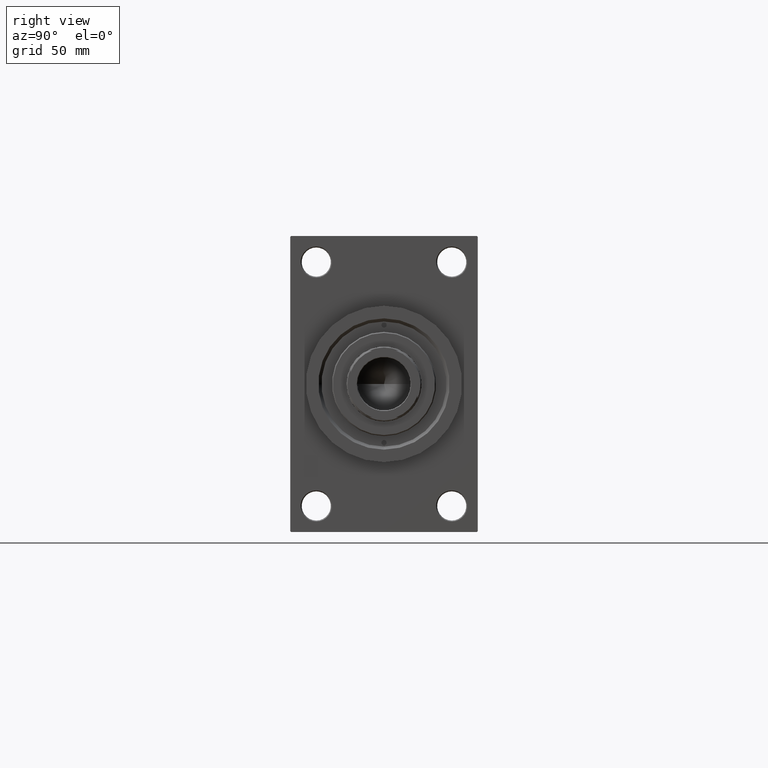
[diagram: clean part render]
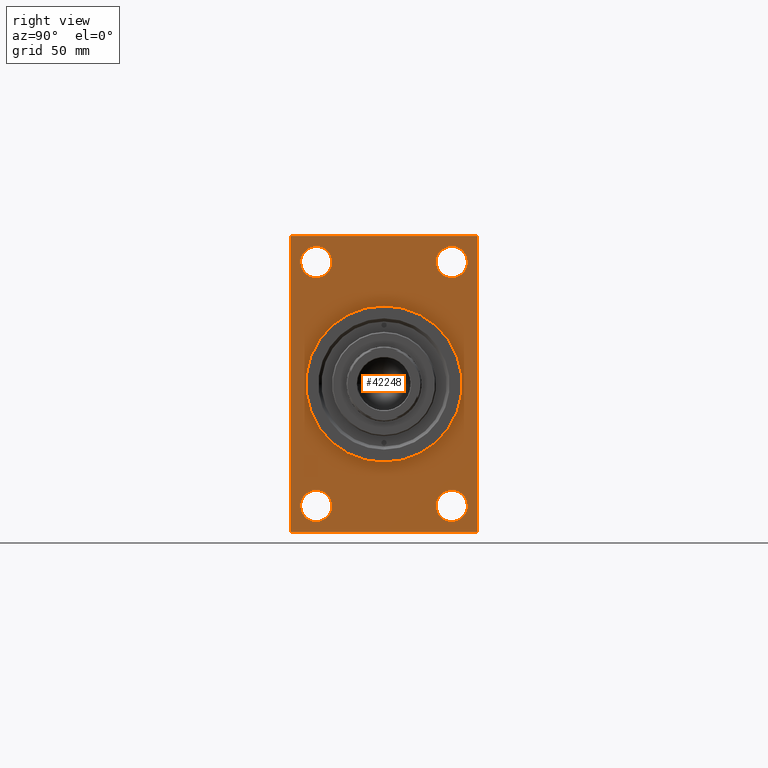
[diagram: same view with one face highlighted and labeled with its STEP entity id]
A machine part, right view. The second image highlights one B-rep face of the part: STEP entity #42248.
In plain terms, the highlighted planar face has unit normal (-1, 0, 0).
Its self-contained STEP definition (entity closure, byte-faithful):
#186 = EDGE_CURVE ( 'NONE', #45759, #33265, #299, .T. ) ;
#289 = EDGE_CURVE ( 'NONE', #39814, #9796, #32761, .T. ) ;
#299 = LINE ( 'NONE', #32429, #25840 ) ;
#440 = DIRECTION ( 'NONE',  ( 0.000000000000000000, 0.000000000000000000, 1.000000000000000000 ) ) ;
#588 = VECTOR ( 'NONE', #18477, 1000.000000000000114 ) ;
#698 = DIRECTION ( 'NONE',  ( -0.000000000000000000, -0.7071067811865622277, -0.7071067811865328068 ) ) ;
#754 = CARTESIAN_POINT ( 'NONE',  ( 245.0000000000000000, 32.50000000000000711, 58.50000000000000711 ) ) ;
#2003 = DIRECTION ( 'NONE',  ( 1.000000000000000000, 0.000000000000000000, 0.000000000000000000 ) ) ;
#2449 = VECTOR ( 'NONE', #45343, 1000.000000000000000 ) ;
#2517 = AXIS2_PLACEMENT_3D ( 'NONE', #31831, #13608, #24168 ) ;
#2533 = EDGE_CURVE ( 'NONE', #29727, #8025, #18938, .T. ) ;
#2587 = PLANE ( 'NONE',  #2517 ) ;
#3186 = LINE ( 'NONE', #18509, #36837 ) ;
#3559 = ORIENTED_EDGE ( 'NONE', *, *, #34337, .T. ) ;
#3860 = CARTESIAN_POINT ( 'NONE',  ( 245.0000000000000000, 45.00000000000001421, -70.50000000000001421 ) ) ;
#5236 = ORIENTED_EDGE ( 'NONE', *, *, #38192, .T. ) ;
#5444 = LINE ( 'NONE', #20053, #24578 ) ;
#6194 = FACE_BOUND ( 'NONE', #8870, .T. ) ;
#6227 = VERTEX_POINT ( 'NONE', #25962 ) ;
#6427 = FACE_BOUND ( 'NONE', #20432, .T. ) ;
#6935 = AXIS2_PLACEMENT_3D ( 'NONE', #44592, #11967, #30195 ) ;
#7033 = DIRECTION ( 'NONE',  ( 0.000000000000000000, 0.000000000000000000, -1.000000000000000000 ) ) ;
#7040 = AXIS2_PLACEMENT_3D ( 'NONE', #19752, #2003, #34376 ) ;
#7729 = CARTESIAN_POINT ( 'NONE',  ( 245.0000000000000000, -44.49999999999997158, -71.00000000000000000 ) ) ;
#8025 = VERTEX_POINT ( 'NONE', #29917 ) ;
#8063 = CARTESIAN_POINT ( 'NONE',  ( 245.0000000000000000, 0.000000000000000000, 0.000000000000000000 ) ) ;
#8472 = VECTOR ( 'NONE', #22501, 1000.000000000000000 ) ;
#8500 = CIRCLE ( 'NONE', #39144, 37.50000000000000711 ) ;
#8633 = EDGE_LOOP ( 'NONE', ( #34534, #23591, #43743, #24395, #15921, #16911, #42875, #3559 ) ) ;
#8870 = EDGE_LOOP ( 'NONE', ( #25010, #32334 ) ) ;
#9002 = CARTESIAN_POINT ( 'NONE',  ( 245.0000000000000000, 32.50000000000000711, 65.99999999999997158 ) ) ;
#9072 = VERTEX_POINT ( 'NONE', #42137 ) ;
#9380 = CARTESIAN_POINT ( 'NONE',  ( 245.0000000000000000, -44.99999999999997158, -70.50000000000000000 ) ) ;
#9558 = FACE_BOUND ( 'NONE', #20856, .T. ) ;
#9796 = VERTEX_POINT ( 'NONE', #13003 ) ;
#9889 = AXIS2_PLACEMENT_3D ( 'NONE', #15006, #44295, #11439 ) ;
#9951 = AXIS2_PLACEMENT_3D ( 'NONE', #754, #15359, #12495 ) ;
#10311 = ORIENTED_EDGE ( 'NONE', *, *, #12841, .F. ) ;
#10448 = DIRECTION ( 'NONE',  ( 0.000000000000000000, 0.000000000000000000, 1.000000000000000000 ) ) ;
#11283 = LINE ( 'NONE', #3860, #588 ) ;
#11439 = DIRECTION ( 'NONE',  ( 0.000000000000000000, 0.000000000000000000, 1.000000000000000000 ) ) ;
#11561 = EDGE_CURVE ( 'NONE', #6227, #36818, #8500, .T. ) ;
#11967 = DIRECTION ( 'NONE',  ( -1.000000000000000000, 0.000000000000000000, -0.000000000000000000 ) ) ;
#12361 = DIRECTION ( 'NONE',  ( -1.000000000000000000, 0.000000000000000000, -0.000000000000000000 ) ) ;
#12495 = DIRECTION ( 'NONE',  ( 0.000000000000000000, 0.000000000000000000, 1.000000000000000000 ) ) ;
#12712 = VERTEX_POINT ( 'NONE', #40863 ) ;
#12841 = EDGE_CURVE ( 'NONE', #36818, #6227, #45347, .T. ) ;
#12904 = FACE_BOUND ( 'NONE', #34470, .T. ) ;
#13003 = CARTESIAN_POINT ( 'NONE',  ( 245.0000000000000000, -32.50000000000000000, -65.99999999999995737 ) ) ;
#13608 = DIRECTION ( 'NONE',  ( -1.000000000000000000, 0.000000000000000000, -0.000000000000000000 ) ) ;
#13830 = EDGE_CURVE ( 'NONE', #29727, #31541, #3186, .T. ) ;
#14342 = VECTOR ( 'NONE', #33573, 1000.000000000000000 ) ;
#14371 = EDGE_CURVE ( 'NONE', #33265, #28219, #5444, .T. ) ;
#15006 = CARTESIAN_POINT ( 'NONE',  ( 245.0000000000000000, 32.50000000000000711, -58.50000000000000000 ) ) ;
#15128 = CARTESIAN_POINT ( 'NONE',  ( 245.0000000000000000, -32.50000000000000000, 65.99999999999997158 ) ) ;
#15359 = DIRECTION ( 'NONE',  ( -1.000000000000000000, 0.000000000000000000, -0.000000000000000000 ) ) ;
#15456 = VERTEX_POINT ( 'NONE', #25111 ) ;
#15921 = ORIENTED_EDGE ( 'NONE', *, *, #2533, .F. ) ;
#16547 = CARTESIAN_POINT ( 'NONE',  ( 245.0000000000000000, 45.00000000000001421, -70.99999999999998579 ) ) ;
#16911 = ORIENTED_EDGE ( 'NONE', *, *, #13830, .T. ) ;
#17200 = FACE_BOUND ( 'NONE', #36680, .T. ) ;
#17962 = LINE ( 'NONE', #40253, #8472 ) ;
#18477 = DIRECTION ( 'NONE',  ( -0.000000000000000000, 0.7071067811865376918, 0.7071067811865573427 ) ) ;
#18509 = CARTESIAN_POINT ( 'NONE',  ( 245.0000000000000000, 44.50000000000007105, 71.00000000000000000 ) ) ;
#18938 = LINE ( 'NONE', #45088, #14342 ) ;
#19231 = CARTESIAN_POINT ( 'NONE',  ( 245.0000000000000000, -32.50000000000000000, 58.50000000000000711 ) ) ;
#19752 = CARTESIAN_POINT ( 'NONE',  ( 245.0000000000000000, 0.000000000000000000, 0.000000000000000000 ) ) ;
#20053 = CARTESIAN_POINT ( 'NONE',  ( 245.0000000000000000, -44.50000000000000000, -71.00000000000000000 ) ) ;
#20432 = EDGE_LOOP ( 'NONE', ( #21332, #42069 ) ) ;
#20567 = CIRCLE ( 'NONE', #26684, 7.499999999999965361 ) ;
#20856 = EDGE_LOOP ( 'NONE', ( #10311, #22249 ) ) ;
#21332 = ORIENTED_EDGE ( 'NONE', *, *, #26650, .T. ) ;
#21536 = CIRCLE ( 'NONE', #35303, 7.499999999999965361 ) ;
#22249 = ORIENTED_EDGE ( 'NONE', *, *, #11561, .F. ) ;
#22501 = DIRECTION ( 'NONE',  ( 0.000000000000000000, -1.000000000000000000, -1.541976423090495387E-16 ) ) ;
#22823 = DIRECTION ( 'NONE',  ( 0.000000000000000000, 0.000000000000000000, 1.000000000000000000 ) ) ;
#23591 = ORIENTED_EDGE ( 'NONE', *, *, #14371, .T. ) ;
#23667 = CIRCLE ( 'NONE', #9889, 7.499999999999978684 ) ;
#23746 = LINE ( 'NONE', #16547, #2449 ) ;
#24168 = DIRECTION ( 'NONE',  ( -0.000000000000000000, 0.000000000000000000, 1.000000000000000000 ) ) ;
#24395 = ORIENTED_EDGE ( 'NONE', *, *, #26421, .T. ) ;
#24561 = CARTESIAN_POINT ( 'NONE',  ( 245.0000000000000000, 32.50000000000000711, 51.00000000000004263 ) ) ;
#24578 = VECTOR ( 'NONE', #34680, 1000.000000000000114 ) ;
#25010 = ORIENTED_EDGE ( 'NONE', *, *, #36771, .T. ) ;
#25111 = CARTESIAN_POINT ( 'NONE',  ( 245.0000000000000000, 32.50000000000000711, -51.00000000000001421 ) ) ;
#25573 = DIRECTION ( 'NONE',  ( 0.000000000000000000, 0.000000000000000000, -1.000000000000000000 ) ) ;
#25837 = DIRECTION ( 'NONE',  ( -1.000000000000000000, 0.000000000000000000, -0.000000000000000000 ) ) ;
#25840 = VECTOR ( 'NONE', #7033, 1000.000000000000000 ) ;
#25962 = CARTESIAN_POINT ( 'NONE',  ( 245.0000000000000000, 4.592425496802575156E-15, -37.50000000000000711 ) ) ;
#26085 = CARTESIAN_POINT ( 'NONE',  ( 245.0000000000000000, 32.50000000000000711, 58.50000000000000711 ) ) ;
#26343 = LINE ( 'NONE', #36912, #43705 ) ;
#26405 = CARTESIAN_POINT ( 'NONE',  ( 245.0000000000000000, 44.50000000000006395, -70.99999999999998579 ) ) ;
#26421 = EDGE_CURVE ( 'NONE', #35439, #8025, #11283, .T. ) ;
#26642 = AXIS2_PLACEMENT_3D ( 'NONE', #34091, #41282, #30976 ) ;
#26650 = EDGE_CURVE ( 'NONE', #9072, #35366, #44235, .T. ) ;
#26665 = DIRECTION ( 'NONE',  ( -1.000000000000000000, 0.000000000000000000, -0.000000000000000000 ) ) ;
#26681 = VERTEX_POINT ( 'NONE', #24561 ) ;
#26684 = AXIS2_PLACEMENT_3D ( 'NONE', #19231, #26665, #22823 ) ;
#28219 = VERTEX_POINT ( 'NONE', #7729 ) ;
#29727 = VERTEX_POINT ( 'NONE', #35455 ) ;
#29917 = CARTESIAN_POINT ( 'NONE',  ( 245.0000000000000000, 45.00000000000001421, -70.50000000000001421 ) ) ;
#30178 = VERTEX_POINT ( 'NONE', #9002 ) ;
#30195 = DIRECTION ( 'NONE',  ( 0.000000000000000000, 0.000000000000000000, 1.000000000000000000 ) ) ;
#30976 = DIRECTION ( 'NONE',  ( 0.000000000000000000, 0.000000000000000000, 1.000000000000000000 ) ) ;
#31541 = VERTEX_POINT ( 'NONE', #36254 ) ;
#31642 = EDGE_CURVE ( 'NONE', #26681, #30178, #41322, .T. ) ;
#31831 = CARTESIAN_POINT ( 'NONE',  ( 245.0000000000000000, 0.000000000000000000, 0.000000000000000000 ) ) ;
#32314 = CIRCLE ( 'NONE', #45346, 7.499999999999985789 ) ;
#32334 = ORIENTED_EDGE ( 'NONE', *, *, #289, .T. ) ;
#32429 = CARTESIAN_POINT ( 'NONE',  ( 245.0000000000000000, -44.99999999999997158, 70.99999999999998579 ) ) ;
#32761 = CIRCLE ( 'NONE', #26642, 7.499999999999985789 ) ;
#32816 = EDGE_CURVE ( 'NONE', #36250, #15456, #44454, .T. ) ;
#33265 = VERTEX_POINT ( 'NONE', #9380 ) ;
#33420 = EDGE_CURVE ( 'NONE', #31541, #12712, #17962, .T. ) ;
#33573 = DIRECTION ( 'NONE',  ( 0.000000000000000000, -4.886545002751570165E-17, -1.000000000000000000 ) ) ;
#34091 = CARTESIAN_POINT ( 'NONE',  ( 245.0000000000000000, -32.50000000000000000, -58.49999999999999289 ) ) ;
#34337 = EDGE_CURVE ( 'NONE', #12712, #45759, #26343, .T. ) ;
#34376 = DIRECTION ( 'NONE',  ( 0.000000000000000000, 0.000000000000000000, -1.000000000000000000 ) ) ;
#34407 = DIRECTION ( 'NONE',  ( 0.000000000000000000, 0.000000000000000000, 1.000000000000000000 ) ) ;
#34470 = EDGE_LOOP ( 'NONE', ( #44980, #5236 ) ) ;
#34534 = ORIENTED_EDGE ( 'NONE', *, *, #186, .T. ) ;
#34680 = DIRECTION ( 'NONE',  ( 0.000000000000000000, 0.7071067811865376918, -0.7071067811865573427 ) ) ;
#35303 = AXIS2_PLACEMENT_3D ( 'NONE', #26085, #25837, #440 ) ;
#35366 = VERTEX_POINT ( 'NONE', #15128 ) ;
#35432 = FACE_OUTER_BOUND ( 'NONE', #8633, .T. ) ;
#35439 = VERTEX_POINT ( 'NONE', #26405 ) ;
#35455 = CARTESIAN_POINT ( 'NONE',  ( 245.0000000000000000, 45.00000000000002132, 70.50000000000004263 ) ) ;
#36250 = VERTEX_POINT ( 'NONE', #43366 ) ;
#36254 = CARTESIAN_POINT ( 'NONE',  ( 245.0000000000000000, 44.50000000000007105, 71.00000000000000000 ) ) ;
#36680 = EDGE_LOOP ( 'NONE', ( #40219, #43905 ) ) ;
#36771 = EDGE_CURVE ( 'NONE', #9796, #39814, #32314, .T. ) ;
#36818 = VERTEX_POINT ( 'NONE', #41101 ) ;
#36837 = VECTOR ( 'NONE', #40315, 1000.000000000000114 ) ;
#36912 = CARTESIAN_POINT ( 'NONE',  ( 245.0000000000000000, -44.99999999999997158, 70.50000000000000000 ) ) ;
#37015 = CARTESIAN_POINT ( 'NONE',  ( 245.0000000000000000, -32.50000000000000000, -51.00000000000000711 ) ) ;
#38192 = EDGE_CURVE ( 'NONE', #30178, #26681, #21536, .T. ) ;
#39144 = AXIS2_PLACEMENT_3D ( 'NONE', #8063, #41140, #25573 ) ;
#39814 = VERTEX_POINT ( 'NONE', #37015 ) ;
#40219 = ORIENTED_EDGE ( 'NONE', *, *, #32816, .T. ) ;
#40253 = CARTESIAN_POINT ( 'NONE',  ( 245.0000000000000000, 45.00000000000002132, 71.00000000000000000 ) ) ;
#40280 = EDGE_CURVE ( 'NONE', #35439, #28219, #23746, .T. ) ;
#40315 = DIRECTION ( 'NONE',  ( 0.000000000000000000, -0.7071067811865474617, 0.7071067811865474617 ) ) ;
#40863 = CARTESIAN_POINT ( 'NONE',  ( 245.0000000000000000, -44.49999999999995026, 70.99999999999998579 ) ) ;
#41101 = CARTESIAN_POINT ( 'NONE',  ( 245.0000000000000000, 0.000000000000000000, 37.50000000000000711 ) ) ;
#41140 = DIRECTION ( 'NONE',  ( 1.000000000000000000, 0.000000000000000000, 0.000000000000000000 ) ) ;
#41282 = DIRECTION ( 'NONE',  ( -1.000000000000000000, 0.000000000000000000, -0.000000000000000000 ) ) ;
#41322 = CIRCLE ( 'NONE', #9951, 7.499999999999965361 ) ;
#42069 = ORIENTED_EDGE ( 'NONE', *, *, #46360, .T. ) ;
#42137 = CARTESIAN_POINT ( 'NONE',  ( 245.0000000000000000, -32.50000000000000000, 51.00000000000004263 ) ) ;
#42248 = ADVANCED_FACE ( 'NONE', ( #6427, #6194, #17200, #12904, #9558, #35432 ), #2587, .F. ) ;
#42875 = ORIENTED_EDGE ( 'NONE', *, *, #33420, .T. ) ;
#43309 = CARTESIAN_POINT ( 'NONE',  ( 245.0000000000000000, -32.50000000000000000, -58.49999999999999289 ) ) ;
#43366 = CARTESIAN_POINT ( 'NONE',  ( 245.0000000000000000, 32.50000000000000711, -65.99999999999997158 ) ) ;
#43705 = VECTOR ( 'NONE', #698, 1000.000000000000000 ) ;
#43743 = ORIENTED_EDGE ( 'NONE', *, *, #40280, .F. ) ;
#43905 = ORIENTED_EDGE ( 'NONE', *, *, #47283, .T. ) ;
#44235 = CIRCLE ( 'NONE', #46523, 7.499999999999965361 ) ;
#44295 = DIRECTION ( 'NONE',  ( -1.000000000000000000, 0.000000000000000000, -0.000000000000000000 ) ) ;
#44454 = CIRCLE ( 'NONE', #6935, 7.499999999999978684 ) ;
#44536 = CARTESIAN_POINT ( 'NONE',  ( 245.0000000000000000, -44.99999999999997158, 70.50000000000000000 ) ) ;
#44592 = CARTESIAN_POINT ( 'NONE',  ( 245.0000000000000000, 32.50000000000000711, -58.50000000000000000 ) ) ;
#44733 = CARTESIAN_POINT ( 'NONE',  ( 245.0000000000000000, -32.50000000000000000, 58.50000000000000711 ) ) ;
#44980 = ORIENTED_EDGE ( 'NONE', *, *, #31642, .T. ) ;
#45088 = CARTESIAN_POINT ( 'NONE',  ( 245.0000000000000000, 45.00000000000002132, 71.00000000000000000 ) ) ;
#45343 = DIRECTION ( 'NONE',  ( 0.000000000000000000, -1.000000000000000000, -1.541976423090495633E-16 ) ) ;
#45346 = AXIS2_PLACEMENT_3D ( 'NONE', #43309, #47368, #10448 ) ;
#45347 = CIRCLE ( 'NONE', #7040, 37.50000000000000711 ) ;
#45759 = VERTEX_POINT ( 'NONE', #44536 ) ;
#46360 = EDGE_CURVE ( 'NONE', #35366, #9072, #20567, .T. ) ;
#46523 = AXIS2_PLACEMENT_3D ( 'NONE', #44733, #12361, #34407 ) ;
#47283 = EDGE_CURVE ( 'NONE', #15456, #36250, #23667, .T. ) ;
#47368 = DIRECTION ( 'NONE',  ( -1.000000000000000000, 0.000000000000000000, -0.000000000000000000 ) ) ;